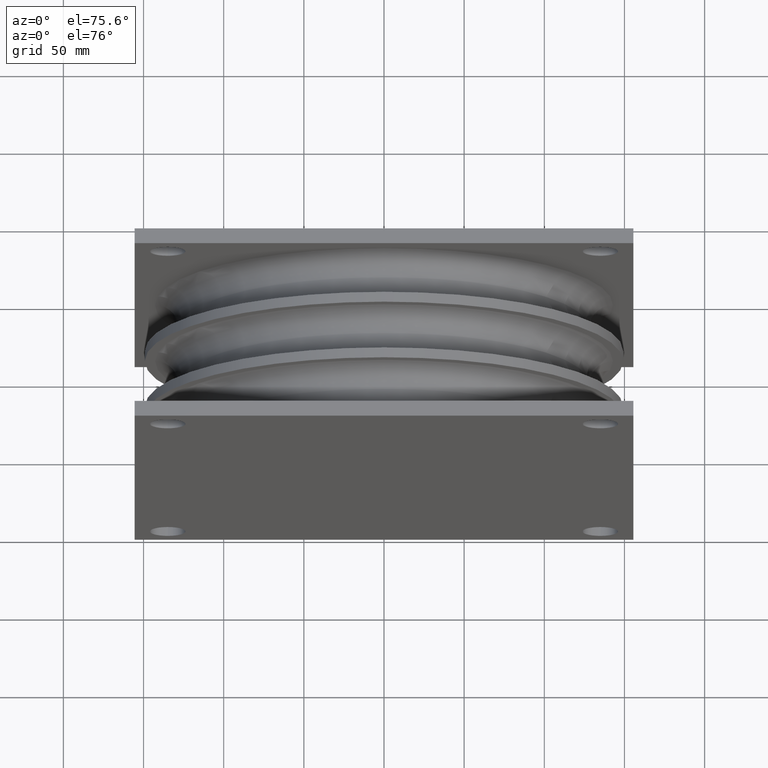
[diagram: clean part render]
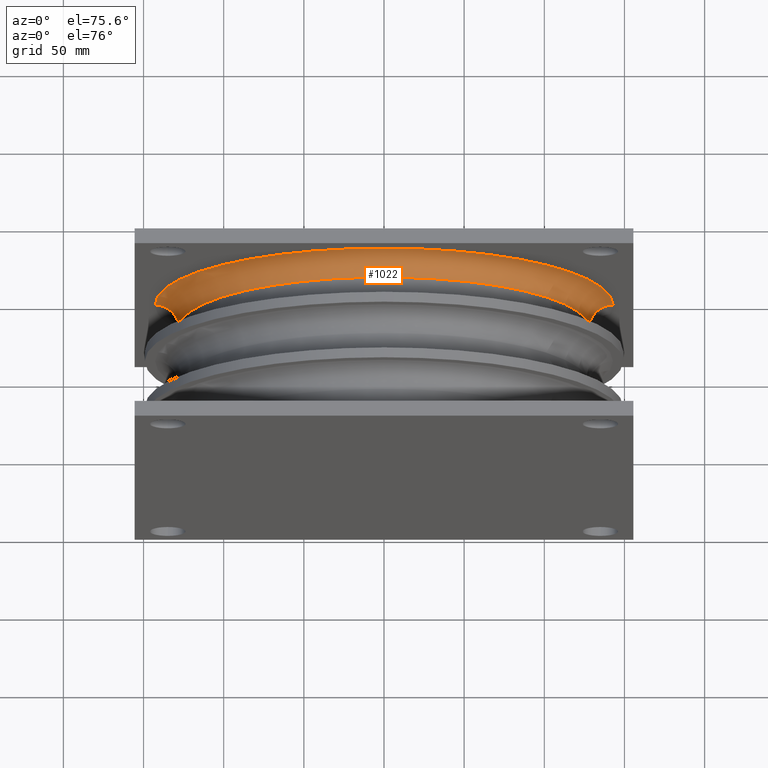
[diagram: same view with one face highlighted and labeled with its STEP entity id]
A machine part, auxiliary view. The second image highlights one B-rep face of the part: STEP entity #1022.
In plain terms, the highlighted toroidal blend (fillet) surface has major radius 142.875 mm and minor (blend) radius 14.859 mm.
Its self-contained STEP definition (entity closure, byte-faithful):
#1 = AXIS2_PLACEMENT_3D ( 'NONE', #1472, #955, #1336 ) ;
#43 = ORIENTED_EDGE ( 'NONE', *, *, #246, .T. ) ;
#66 = CIRCLE ( 'NONE', #198, 0.5850000000000004100 ) ;
#139 = CARTESIAN_POINT ( 'NONE',  ( -5.040000000000000000, 3.790000000000002300, 6.172219867702660300E-016 ) ) ;
#146 = ORIENTED_EDGE ( 'NONE', *, *, #207, .T. ) ;
#154 = CARTESIAN_POINT ( 'NONE',  ( -5.625000000000000000, 3.790000000000003600, 6.888638245203861900E-016 ) ) ;
#198 = AXIS2_PLACEMENT_3D ( 'NONE', #154, #1104, #378 ) ;
#207 = EDGE_CURVE ( 'NONE', #1420, #446, #1172, .T. ) ;
#246 = EDGE_CURVE ( 'NONE', #446, #1522, #1111, .T. ) ;
#284 = EDGE_LOOP ( 'NONE', ( #947, #146, #43, #516 ) ) ;
#338 = DIRECTION ( 'NONE',  ( -1.000000000000000000, 0.0000000000000000000, 0.0000000000000000000 ) ) ;
#350 = CARTESIAN_POINT ( 'NONE',  ( 1.974742963625115300E-016, 4.375000000000003600, 0.0000000000000000000 ) ) ;
#378 = DIRECTION ( 'NONE',  ( 1.000000000000000000, 0.0000000000000000000, -1.224646799147354200E-016 ) ) ;
#392 = FACE_OUTER_BOUND ( 'NONE', #284, .T. ) ;
#446 = VERTEX_POINT ( 'NONE', #975 ) ;
#471 = DIRECTION ( 'NONE',  ( 1.000000000000000000, -1.942647462161253800E-016, 0.0000000000000000000 ) ) ;
#516 = ORIENTED_EDGE ( 'NONE', *, *, #1191, .F. ) ;
#551 = AXIS2_PLACEMENT_3D ( 'NONE', #350, #1316, #471 ) ;
#576 = EDGE_CURVE ( 'NONE', #1420, #710, #743, .T. ) ;
#710 = VERTEX_POINT ( 'NONE', #139 ) ;
#743 = CIRCLE ( 'NONE', #1419, 5.040000000000000000 ) ;
#777 = AXIS2_PLACEMENT_3D ( 'NONE', #965, #968, #338 ) ;
#802 = DIRECTION ( 'NONE',  ( -2.258269631761038600E-016, -1.000000000000000000, -0.0000000000000000000 ) ) ;
#925 = TOROIDAL_SURFACE ( 'NONE', #1, 5.625000000000000000, 0.5850000000000007400 ) ;
#947 = ORIENTED_EDGE ( 'NONE', *, *, #576, .F. ) ;
#955 = DIRECTION ( 'NONE',  ( -2.258269631761038600E-016, -1.000000000000000000, -0.0000000000000000000 ) ) ;
#965 = CARTESIAN_POINT ( 'NONE',  ( 5.625000000000000000, 3.790000000000001400, 0.0000000000000000000 ) ) ;
#968 = DIRECTION ( 'NONE',  ( 0.0000000000000000000, 0.0000000000000000000, -1.000000000000000000 ) ) ;
#975 = CARTESIAN_POINT ( 'NONE',  ( 5.625000000000000000, 4.375000000000002700, 0.0000000000000000000 ) ) ;
#1022 = ADVANCED_FACE ( 'NONE', ( #392 ), #925, .F. ) ;
#1104 = DIRECTION ( 'NONE',  ( 1.224646799147353200E-016, -2.765582676147827700E-032, 1.000000000000000000 ) ) ;
#1111 = CIRCLE ( 'NONE', #551, 5.625000000000000000 ) ;
#1172 = CIRCLE ( 'NONE', #777, 0.5850000000000004100 ) ;
#1191 = EDGE_CURVE ( 'NONE', #710, #1522, #66, .T. ) ;
#1252 = CARTESIAN_POINT ( 'NONE',  ( 1.617865865546481300E-032, 3.790000000000002300, 0.0000000000000000000 ) ) ;
#1257 = DIRECTION ( 'NONE',  ( 1.000000000000000000, -2.168133328304970800E-016, 0.0000000000000000000 ) ) ;
#1269 = CARTESIAN_POINT ( 'NONE',  ( 5.040000000000000000, 3.790000000000002300, 0.0000000000000000000 ) ) ;
#1316 = DIRECTION ( 'NONE',  ( -2.258269631761038600E-016, -1.000000000000000000, -0.0000000000000000000 ) ) ;
#1336 = DIRECTION ( 'NONE',  ( 1.000000000000000000, -2.258269631761038600E-016, 0.0000000000000000000 ) ) ;
#1419 = AXIS2_PLACEMENT_3D ( 'NONE', #1252, #802, #1257 ) ;
#1420 = VERTEX_POINT ( 'NONE', #1269 ) ;
#1472 = CARTESIAN_POINT ( 'NONE',  ( 0.0000000000000000000, 3.790000000000002300, 0.0000000000000000000 ) ) ;
#1522 = VERTEX_POINT ( 'NONE', #1558 ) ;
#1558 = CARTESIAN_POINT ( 'NONE',  ( -5.625000000000000000, 4.375000000000004400, 6.888638245203861900E-016 ) ) ;